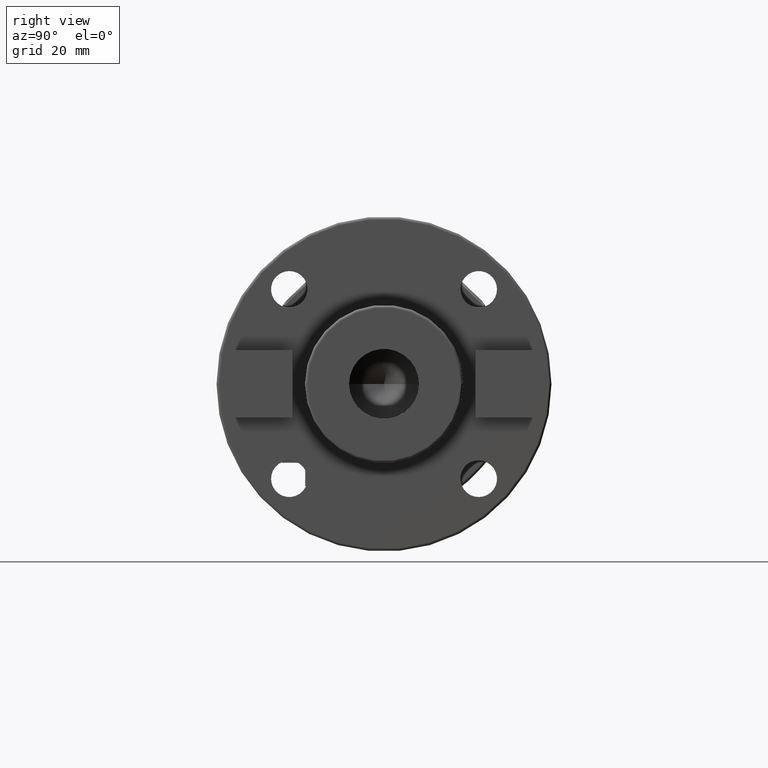
[diagram: clean part render]
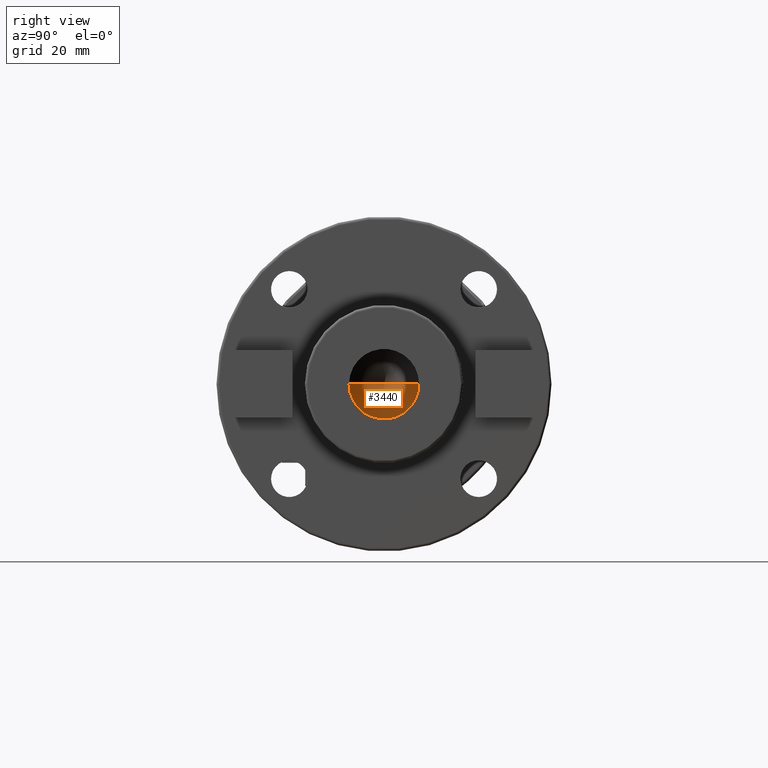
[diagram: same view with one face highlighted and labeled with its STEP entity id]
A machine part, right view. The second image highlights one B-rep face of the part: STEP entity #3440.
In plain terms, the highlighted conical surface has half-angle 59 deg.
Its self-contained STEP definition (entity closure, byte-faithful):
#1341=CARTESIAN_POINT('',(3.8E1,0.E0,0.E0));
#1342=DIRECTION('',(1.E0,0.E0,0.E0));
#1343=DIRECTION('',(0.E0,-1.E0,0.E0));
#1344=AXIS2_PLACEMENT_3D('',#1341,#1342,#1343);
#1359=DIRECTION('',(5.150380749101E-1,-8.571673007021E-1,0.E0));
#1360=VECTOR('',#1359,1.545789251310E1);
#1361=CARTESIAN_POINT('',(3.003859679788E1,0.E0,0.E0));
#1362=LINE('',#1361,#1360);
#1363=DIRECTION('',(5.150380749101E-1,8.571673007021E-1,0.E0));
#1364=VECTOR('',#1363,1.545789251310E1);
#1365=CARTESIAN_POINT('',(3.003859679788E1,0.E0,0.E0));
#1366=LINE('',#1365,#1364);
#1956=CARTESIAN_POINT('',(3.003859679788E1,0.E0,0.E0));
#1957=CARTESIAN_POINT('',(3.8E1,-1.325E1,0.E0));
#1958=VERTEX_POINT('',#1956);
#1959=VERTEX_POINT('',#1957);
#1960=CARTESIAN_POINT('',(3.8E1,1.325E1,0.E0));
#1961=VERTEX_POINT('',#1960);
#3430=CARTESIAN_POINT('',(3.401929839894E1,0.E0,0.E0));
#3431=DIRECTION('',(1.E0,0.E0,0.E0));
#3432=DIRECTION('',(0.E0,-1.E0,0.E0));
#3433=AXIS2_PLACEMENT_3D('',#3430,#3431,#3432);
#3434=CONICAL_SURFACE('',#3433,6.625E0,5.9E1);
#3435=ORIENTED_EDGE('',*,*,#3422,.F.);
#3436=ORIENTED_EDGE('',*,*,#3425,.T.);
#3437=ORIENTED_EDGE('',*,*,#3397,.F.);
#3438=EDGE_LOOP('',(#3435,#3436,#3437));
#3439=FACE_OUTER_BOUND('',#3438,.F.);
#3440=ADVANCED_FACE('',(#3439),#3434,.F.);
#1345=CIRCLE('',#1344,1.325E1);
#3397=EDGE_CURVE('',#1959,#1961,#1345,.T.);
#3422=EDGE_CURVE('',#1958,#1959,#1362,.T.);
#3425=EDGE_CURVE('',#1958,#1961,#1366,.T.);